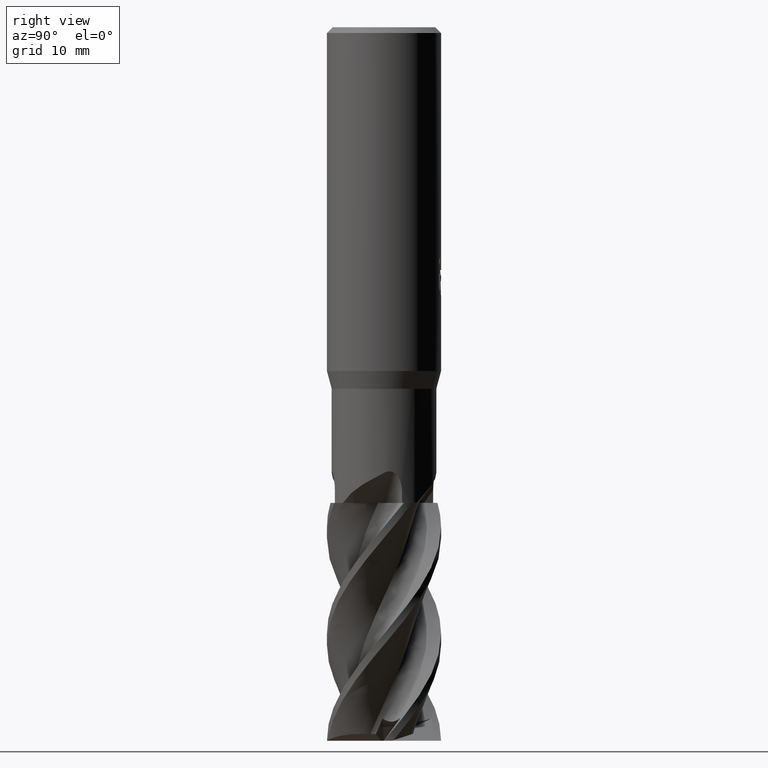
[diagram: clean part render]
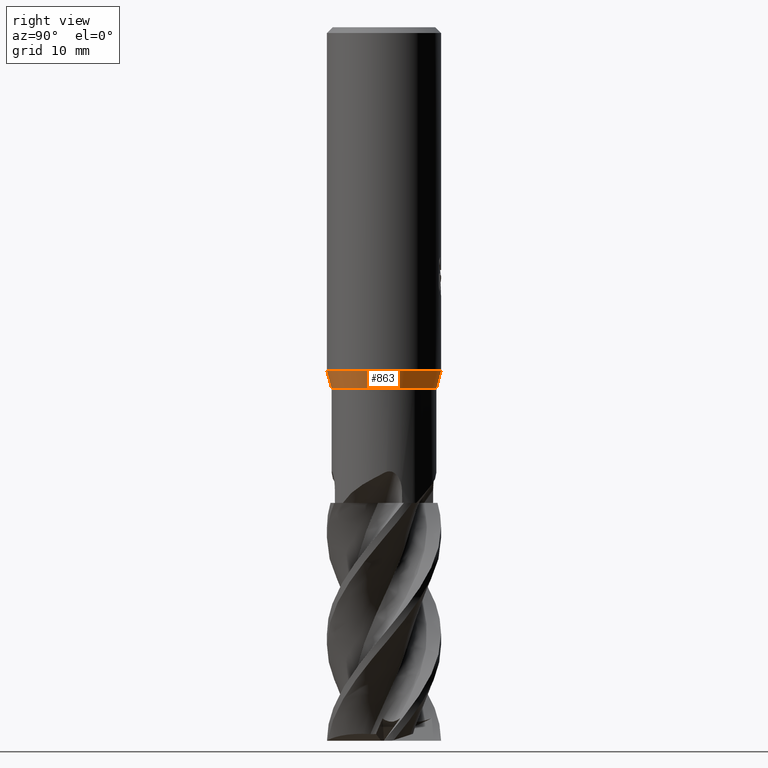
[diagram: same view with one face highlighted and labeled with its STEP entity id]
A machine part, right view. The second image highlights one B-rep face of the part: STEP entity #863.
In plain terms, the highlighted conical surface has half-angle 15 deg.
Its self-contained STEP definition (entity closure, byte-faithful):
#529=EDGE_CURVE('',#679,#809,#1486,.T.);
#557=EDGE_CURVE('',#1365,#679,#1516,.T.);
#559=VERTEX_POINT('',#1518);
#679=VERTEX_POINT('',#1650);
#809=VERTEX_POINT('',#1795);
#863=ADVANCED_FACE('',(#1852),#1853,.T.);
#877=EDGE_CURVE('',#1365,#559,#1867,.T.);
#1365=VERTEX_POINT('',#2404);
#1391=EDGE_CURVE('',#809,#559,#2430,.T.);
#1486=CIRCLE('',#3231,5.49995);
#1516=LINE('',#3291,#3292);
#1518=CARTESIAN_POINT('',(7.34757689261657E-016,-5.99995,-36.134));
#1650=CARTESIAN_POINT('',(0.0,5.49995,-38.0));
#1795=CARTESIAN_POINT('',(6.73527371570538E-016,-5.49995,-38.0));
#1852=FACE_OUTER_BOUND('',#6497,.T.);
#1853=CONICAL_SURFACE('',#6498,5.74995,0.261802791304143);
#1867=CIRCLE('',#6548,5.99995);
#2404=CARTESIAN_POINT('',(0.0,5.99995,-36.134));
#2430=LINE('',#10435,#10436);
#3231=AXIS2_PLACEMENT_3D('',#10681,#10682,#10683);
#3291=CARTESIAN_POINT('',(-7.04142530416098E-016,5.74995,-37.067));
#3292=VECTOR('',#10712,1.0);
#6497=EDGE_LOOP('',(#11083,#11084,#11085,#11086));
#6498=AXIS2_PLACEMENT_3D('',#11087,#11088,#11089);
#6548=AXIS2_PLACEMENT_3D('',#11094,#11095,#11096);
#10435=CARTESIAN_POINT('',(7.04142530416098E-016,-5.74995,-37.067));
#10436=VECTOR('',#11693,1.0);
#10681=CARTESIAN_POINT('',(0.0,0.0,-38.0));
#10682=DIRECTION('',(0.0,0.0,-1.0));
#10683=DIRECTION('',(0.0,1.0,0.0));
#10712=DIRECTION('',(3.16955473055209E-017,-0.258822332634395,-0.965924945391561));
#11083=ORIENTED_EDGE('',*,*,#557,.F.);
#11084=ORIENTED_EDGE('',*,*,#877,.T.);
#11085=ORIENTED_EDGE('',*,*,#1391,.F.);
#11086=ORIENTED_EDGE('',*,*,#529,.F.);
#11087=CARTESIAN_POINT('',(0.0,0.0,-37.067));
#11088=DIRECTION('',(-0.0,-0.0,1.0));
#11089=DIRECTION('',(0.0,1.0,0.0));
#11094=CARTESIAN_POINT('',(0.0,0.0,-36.134));
#11095=DIRECTION('',(0.0,0.0,-1.0));
#11096=DIRECTION('',(0.0,1.0,0.0));
#11693=DIRECTION('',(3.16955473055209E-017,-0.258822332634395,0.965924945391561));